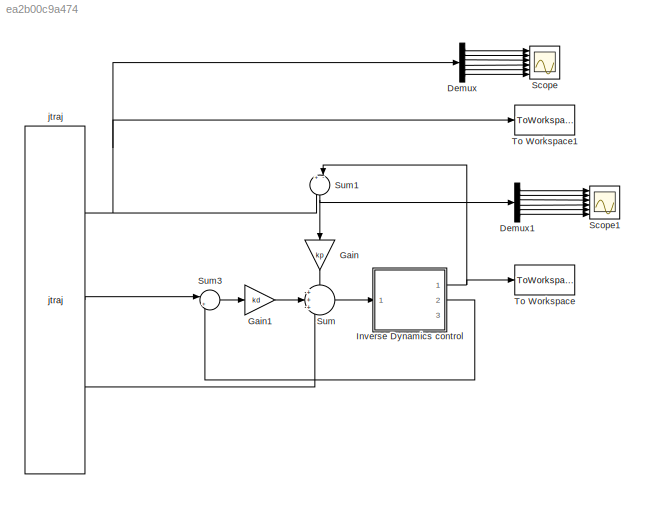
MODEL slx_ea2b00c9a474
KIND model
CONFIG AbsTol = auto
CONFIG EnableMultiTasking = off
CONFIG FixedStep = timeStep
CONFIG InitFcn = initSim=true;\ninitIDctrl
CONFIG MaxStep = 1e-4
CONFIG MinStep = auto
CONFIG RelTol = 1e-3
CONFIG SampleTimeConstraint = Unconstrained
CONFIG Solver = FixedStepAuto
CONFIG SolverName = FixedStepAuto
CONFIG StartTime = 0.0
CONFIG StopFcn = initSim=false;\ninitIDctrl
CONFIG StopTime = tfin
BLOCK [Demux] Demux
  DisplayOption = bar
  Outputs = 6
  Ports = [1, 6]
BLOCK [Demux] Demux1
  DisplayOption = bar
  Outputs = 6
  Ports = [1, 6]
BLOCK [Gain] Gain
  Gain = kp
  OutDataTypeStr = Inherit: Inherit via internal rule
  ParamDataTypeStr = Inherit: Inherit via internal rule
  SaturateOnIntegerOverflow = off
BLOCK [Gain] Gain1
  Gain = kd
  OutDataTypeStr = Inherit: Inherit via internal rule
  ParamDataTypeStr = Inherit: Inherit via internal rule
  SaturateOnIntegerOverflow = off
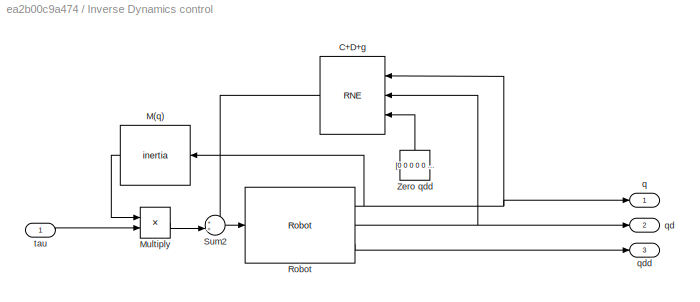
BLOCK [SubSystem] Inverse Dynamics control
  Ports = [1, 3]
  RequestExecContextInheritance = off
BLOCK [Reference] Inverse Dynamics control/C+D+g  REF=roblocks/Arm/RNE  (lib defined in mdl_2a292b13c81b, mdl_69400f8cfe22, +12 more)
  Ports = [3, 1]
  SourceBlock = roblocks/Arm/RNE
BLOCK [Reference] Inverse Dynamics control/M(q)  REF=roblocks/Arm/inertia  (lib defined in mdl_2a292b13c81b, mdl_69400f8cfe22, +12 more)
  Ports = [1, 1]
  SourceBlock = roblocks/Arm/inertia
BLOCK [Product] Inverse Dynamics control/Multiply
  InputSameDT = off
  Multiplication = Matrix(*)
  OutDataTypeStr = Inherit: Inherit via internal rule
  Ports = [2, 1]
  RndMeth = Floor
  SaturateOnIntegerOverflow = off
BLOCK [Reference] Inverse Dynamics control/Robot  REF=roblocks/Arm/Robot  (lib defined in mdl_2a292b13c81b, mdl_69400f8cfe22, +12 more)
  Ports = [1, 3]
  SourceBlock = roblocks/Arm/Robot
BLOCK [Sum] Inverse Dynamics control/Sum2
  IconShape = round
  InputSameDT = off
  Inputs = ++|
  OutDataTypeStr = Inherit: Inherit via internal rule
  Ports = [2, 1]
  SaturateOnIntegerOverflow = off
BLOCK [Constant] Inverse Dynamics control/Zero qdd
  Value = [0 0 0 0 0 0]'
BLOCK [Outport] Inverse Dynamics control/q
  IconDisplay = Port number
BLOCK [Outport] Inverse Dynamics control/qd
  IconDisplay = Port number
  Port = 2
BLOCK [Outport] Inverse Dynamics control/qdd
  IconDisplay = Port number
  Port = 3
BLOCK [Inport] Inverse Dynamics control/tau
  IconDisplay = Port number
BLOCK [Scope] Scope
  Floating = off
  NumInputPorts = 6
  Ports = [6]
  ScopeSpecificationString = Simulink.scopes.TimeScopeBlockCfg('CurrentConfiguration', extmgr.ConfigurationSet(extmgr.Configuration('Core','General UI',true),extmgr.Configuration('Core','Source UI',true),extmgr.Configuration('Sources','WiredSimulink',true),extmgr.Configuration('Visuals','Time Domain',true,'SerializedDisplays',{struct('MinYLimReal','-3.92296','MaxYLimReal','3.89072','YLabelReal','','MinYLimMag','0.00000','MaxY...<+1501ch>
BLOCK [Scope] Scope1
  Floating = off
  NumInputPorts = 6
  Ports = [6]
  ScopeSpecificationString = Simulink.scopes.TimeScopeBlockCfg('CurrentConfiguration', extmgr.ConfigurationSet(extmgr.Configuration('Core','General UI',true),extmgr.Configuration('Core','Source UI',true),extmgr.Configuration('Sources','WiredSimulink',true,'DataLoggingVariableName','ScopeData1'),extmgr.Configuration('Visuals','Time Domain',true,'SerializedDisplays',{struct('MinYLimReal','-0.00784','MaxYLimReal','0.02231','YLab...<+1827ch>
BLOCK [Sum] Sum
  IconShape = round
  InputSameDT = off
  Inputs = +++
  OutDataTypeStr = Inherit: Inherit via internal rule
  Ports = [3, 1]
  SaturateOnIntegerOverflow = off
BLOCK [Sum] Sum1
  IconShape = round
  InputSameDT = off
  Inputs = +-|
  OutDataTypeStr = Inherit: Inherit via internal rule
  Ports = [2, 1]
  SaturateOnIntegerOverflow = off
BLOCK [Sum] Sum3
  IconShape = round
  InputSameDT = off
  Inputs = |+-
  OutDataTypeStr = Inherit: Inherit via internal rule
  Ports = [2, 1]
  SaturateOnIntegerOverflow = off
BLOCK [ToWorkspace] To Workspace
  FixptAsFi = on
  MaxDataPoints = inf
  Ports = [1]
  SampleTime = -1
  Save2DSignal = 3-D array (concatenate along third dimension)
  SaveFormat = Timeseries
  VariableName = qResult
BLOCK [ToWorkspace] To Workspace1
  FixptAsFi = on
  MaxDataPoints = inf
  Ports = [1]
  SampleTime = -1
  Save2DSignal = 3-D array (concatenate along third dimension)
  SaveFormat = Timeseries
  VariableName = trajectory
BLOCK [Reference] jtraj  REF=roblocks/Toolbox/jtraj  (lib defined in mdl_2a292b13c81b, mdl_69400f8cfe22, +12 more)
  Ports = [0, 3]
  SourceBlock = roblocks/Toolbox/jtraj
LINE Demux1:1 -> Scope1:1
LINE Demux1:2 -> Scope1:2
LINE Demux1:3 -> Scope1:3
LINE Demux1:4 -> Scope1:4
LINE Demux1:5 -> Scope1:5
LINE Demux1:6 -> Scope1:6
LINE Demux:1 -> Scope:1
LINE Demux:2 -> Scope:2
LINE Demux:3 -> Scope:3
LINE Demux:4 -> Scope:4
LINE Demux:5 -> Scope:5
LINE Demux:6 -> Scope:6
LINE Gain1:1 -> Sum:2
LINE Gain:1 -> Sum:1
LINE Inverse Dynamics control/C+D+g:1 -> Inverse Dynamics control/Sum2:1
LINE Inverse Dynamics control/M(q):1 -> Inverse Dynamics control/Multiply:1
LINE Inverse Dynamics control/Multiply:1 -> Inverse Dynamics control/Sum2:2
NET Inverse Dynamics control/Robot:1 -> Inverse Dynamics control/C+D+g:1, Inverse Dynamics control/M(q):1, Inverse Dynamics control/q:1
NET Inverse Dynamics control/Robot:2 -> Inverse Dynamics control/C+D+g:2, Inverse Dynamics control/qd:1
LINE Inverse Dynamics control/Robot:3 -> Inverse Dynamics control/qdd:1
LINE Inverse Dynamics control/Sum2:1 -> Inverse Dynamics control/Robot:1
LINE Inverse Dynamics control/Zero qdd:1 -> Inverse Dynamics control/C+D+g:3
LINE Inverse Dynamics control/tau:1 -> Inverse Dynamics control/Multiply:2
NET Inverse Dynamics control:1 -> Sum1:2, To Workspace:1
LINE Inverse Dynamics control:2 -> Sum3:2
NET Sum1:1 -> Demux1:1, Gain:1
LINE Sum3:1 -> Gain1:1
LINE Sum:1 -> Inverse Dynamics control:1
NET jtraj:1 -> Demux:1, Sum1:1, To Workspace1:1
LINE jtraj:2 -> Sum3:1
LINE jtraj:3 -> Sum:3
note: NET lines group one-source signal fan-out (src -> all destinations, sorted); 1:1 wires keep LINE
